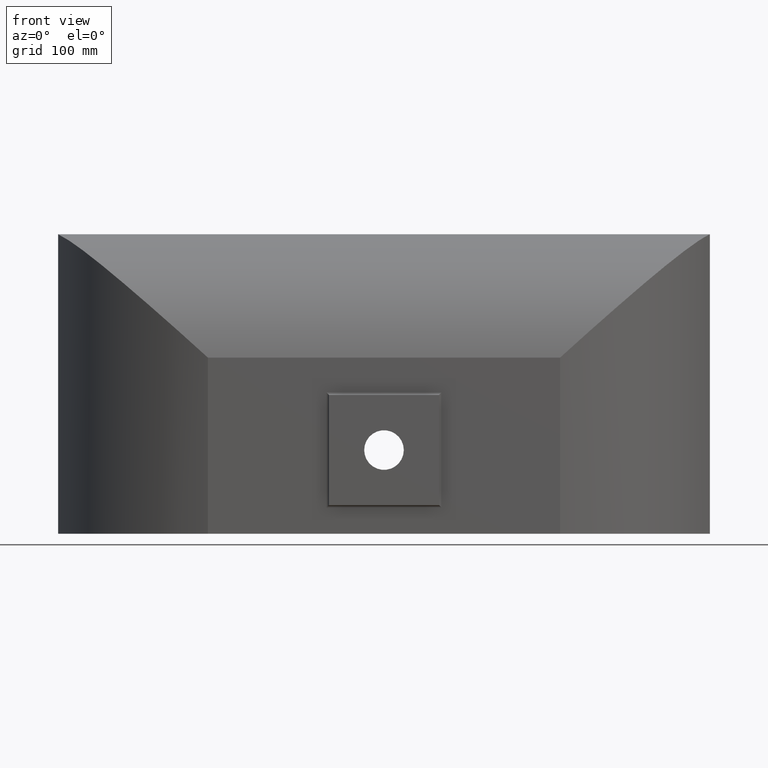
[diagram: clean part render]
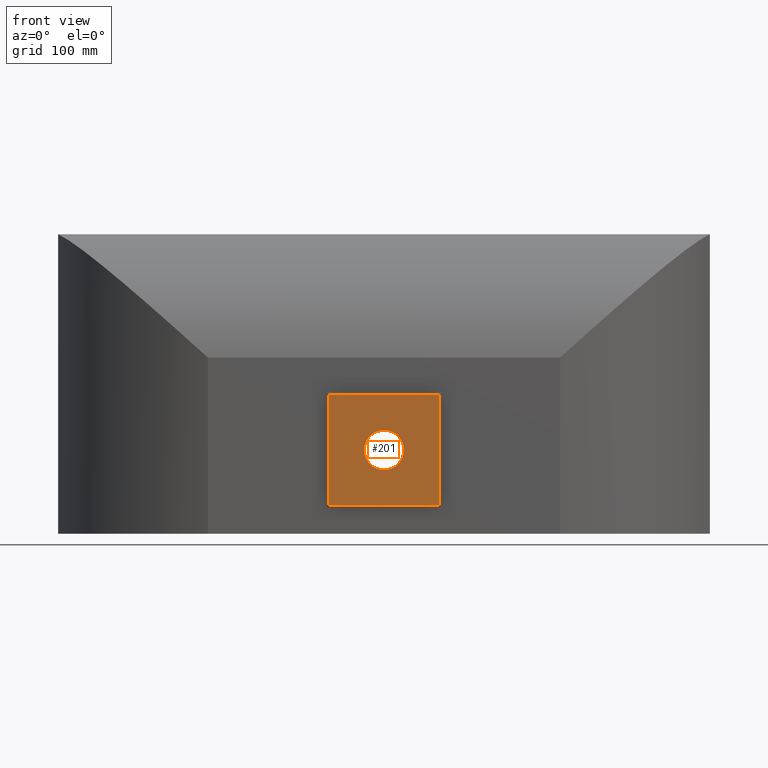
[diagram: same view with one face highlighted and labeled with its STEP entity id]
A machine part, front view. The second image highlights one B-rep face of the part: STEP entity #201.
In plain terms, the highlighted planar face has unit normal (0, -1, 0).
Its self-contained STEP definition (entity closure, byte-faithful):
#1 = CIRCLE ( 'NONE', #650, 22.50000000013075407 ) ;
#12 = EDGE_CURVE ( 'NONE', #1100, #87, #1404, .T. ) ;
#28 = EDGE_CURVE ( 'NONE', #87, #742, #1300, .T. ) ;
#37 = PLANE ( 'NONE',  #318 ) ;
#87 = VERTEX_POINT ( 'NONE', #880 ) ;
#94 = LINE ( 'NONE', #544, #892 ) ;
#107 = VERTEX_POINT ( 'NONE', #452 ) ;
#189 = ORIENTED_EDGE ( 'NONE', *, *, #28, .T. ) ;
#201 = ADVANCED_FACE ( 'NONE', ( #596, #1057 ), #37, .T. ) ;
#207 = VECTOR ( 'NONE', #746, 1000.000000000000000 ) ;
#258 = LINE ( 'NONE', #705, #789 ) ;
#282 = DIRECTION ( 'NONE',  ( 0.0000000000000000000, 1.000000000000000000, 0.0000000000000000000 ) ) ;
#294 = CARTESIAN_POINT ( 'NONE',  ( -62.50000000000000000, -163.0000000000000284, 62.50000000000000000 ) ) ;
#318 = AXIS2_PLACEMENT_3D ( 'NONE', #487, #943, #1381 ) ;
#361 = EDGE_CURVE ( 'NONE', #840, #1100, #258, .T. ) ;
#402 = DIRECTION ( 'NONE',  ( 0.0000000000000000000, 1.000000000000000000, 0.0000000000000000000 ) ) ;
#403 = CARTESIAN_POINT ( 'NONE',  ( 62.50000000000000000, -163.0000000000000284, 62.50000000000000000 ) ) ;
#452 = CARTESIAN_POINT ( 'NONE',  ( -22.50000000018177104, -163.0000000000000284, 4.888211765212533353E-11 ) ) ;
#456 = CARTESIAN_POINT ( 'NONE',  ( 62.50000000000005684, -163.0000000000000284, -62.50000000000000000 ) ) ;
#487 = CARTESIAN_POINT ( 'NONE',  ( 62.50000000000005684, -163.0000000000000284, -62.50000000000000000 ) ) ;
#544 = CARTESIAN_POINT ( 'NONE',  ( -62.50000000000000000, -163.0000000000000284, 62.50000000000000000 ) ) ;
#574 = ORIENTED_EDGE ( 'NONE', *, *, #12, .T. ) ;
#596 = FACE_BOUND ( 'NONE', #794, .T. ) ;
#626 = EDGE_LOOP ( 'NONE', ( #574, #189, #1421, #1136 ) ) ;
#650 = AXIS2_PLACEMENT_3D ( 'NONE', #1289, #282, #731 ) ;
#705 = CARTESIAN_POINT ( 'NONE',  ( -62.49999999999997158, -163.0000000000000284, -62.50000000000000000 ) ) ;
#707 = EDGE_CURVE ( 'NONE', #742, #840, #94, .T. ) ;
#731 = DIRECTION ( 'NONE',  ( 0.0000000000000000000, 0.0000000000000000000, 1.000000000000000000 ) ) ;
#742 = VERTEX_POINT ( 'NONE', #1035 ) ;
#746 = DIRECTION ( 'NONE',  ( -1.000000000000000000, -0.0000000000000000000, -0.0000000000000000000 ) ) ;
#774 = ORIENTED_EDGE ( 'NONE', *, *, #1004, .T. ) ;
#789 = VECTOR ( 'NONE', #1161, 1000.000000000000000 ) ;
#794 = EDGE_LOOP ( 'NONE', ( #1186, #774 ) ) ;
#802 = CIRCLE ( 'NONE', #1006, 22.50000000013075407 ) ;
#840 = VERTEX_POINT ( 'NONE', #1365 ) ;
#859 = DIRECTION ( 'NONE',  ( 0.0000000000000000000, 0.0000000000000000000, 1.000000000000000000 ) ) ;
#860 = DIRECTION ( 'NONE',  ( -1.110223024625156540E-16, -0.0000000000000000000, 1.000000000000000000 ) ) ;
#880 = CARTESIAN_POINT ( 'NONE',  ( 62.50000000000000000, -163.0000000000000284, 62.50000000000000000 ) ) ;
#892 = VECTOR ( 'NONE', #1001, 1000.000000000000000 ) ;
#902 = EDGE_CURVE ( 'NONE', #107, #1405, #1, .T. ) ;
#943 = DIRECTION ( 'NONE',  ( 0.0000000000000000000, -1.000000000000000000, 0.0000000000000000000 ) ) ;
#1001 = DIRECTION ( 'NONE',  ( 1.665334536937734811E-16, 0.0000000000000000000, -1.000000000000000000 ) ) ;
#1004 = EDGE_CURVE ( 'NONE', #1405, #107, #802, .T. ) ;
#1006 = AXIS2_PLACEMENT_3D ( 'NONE', #1403, #402, #859 ) ;
#1025 = VECTOR ( 'NONE', #860, 1000.000000000000000 ) ;
#1035 = CARTESIAN_POINT ( 'NONE',  ( -62.50000000000000000, -163.0000000000000284, 62.50000000000000000 ) ) ;
#1057 = FACE_OUTER_BOUND ( 'NONE', #626, .T. ) ;
#1100 = VERTEX_POINT ( 'NONE', #456 ) ;
#1136 = ORIENTED_EDGE ( 'NONE', *, *, #361, .T. ) ;
#1161 = DIRECTION ( 'NONE',  ( 1.000000000000000000, 0.0000000000000000000, 0.0000000000000000000 ) ) ;
#1186 = ORIENTED_EDGE ( 'NONE', *, *, #902, .T. ) ;
#1278 = CARTESIAN_POINT ( 'NONE',  ( 22.50000000007974066, -163.0000000000000284, 4.888487310742391577E-11 ) ) ;
#1289 = CARTESIAN_POINT ( 'NONE',  ( -5.101474798152594303E-11, -163.0000000000000284, 5.129230373768223217E-11 ) ) ;
#1300 = LINE ( 'NONE', #294, #207 ) ;
#1365 = CARTESIAN_POINT ( 'NONE',  ( -62.49999999999997158, -163.0000000000000284, -62.50000000000000000 ) ) ;
#1381 = DIRECTION ( 'NONE',  ( 0.0000000000000000000, -0.0000000000000000000, -1.000000000000000000 ) ) ;
#1403 = CARTESIAN_POINT ( 'NONE',  ( -5.101474798152594303E-11, -163.0000000000000284, 5.129230373768223217E-11 ) ) ;
#1404 = LINE ( 'NONE', #403, #1025 ) ;
#1405 = VERTEX_POINT ( 'NONE', #1278 ) ;
#1421 = ORIENTED_EDGE ( 'NONE', *, *, #707, .T. ) ;